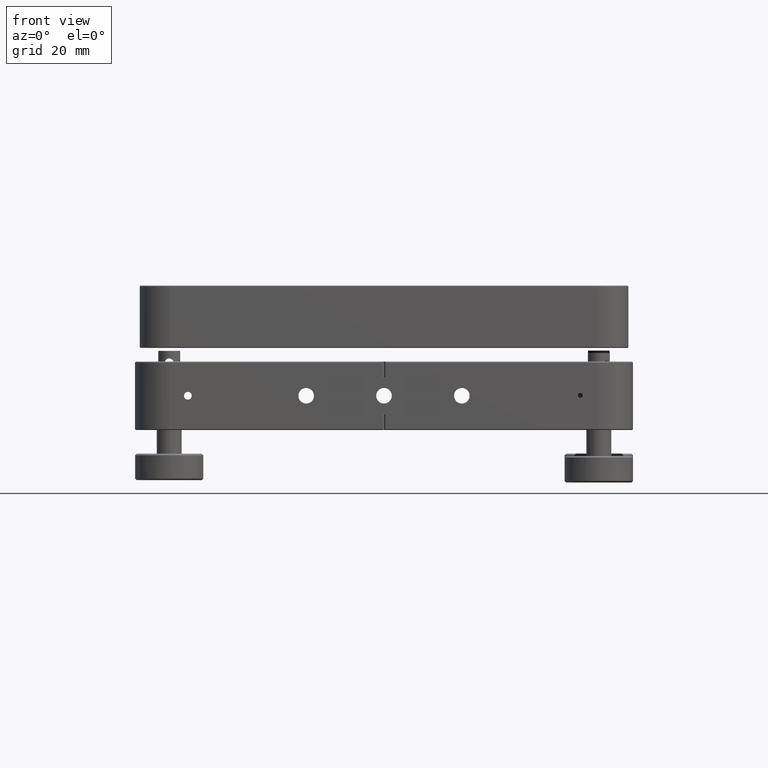
[diagram: clean part render]
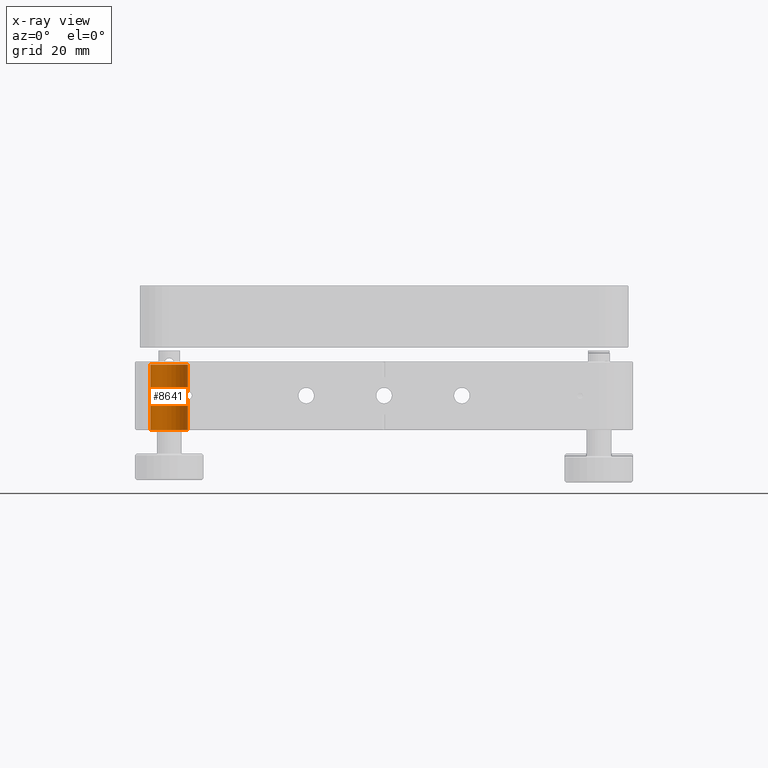
[diagram: x-ray — body ghosted, one internal face saturated and labeled with its STEP entity id]
A machine part, front view, then the same camera in x-ray: the body is ghosted and one INTERNAL B-rep face — a face not visible from any outside direction — is saturated and labeled: STEP entity #8641.
In plain terms, the highlighted cylindrical surface (edge-blend (fillet) strip) has radius 6 mm, axis along (0, 0, -1).
Its self-contained STEP definition (entity closure, byte-faithful):
#105 = CARTESIAN_POINT ( 'NONE',  ( -62.99999999999998579, -69.00000000000001421, 11.00000000000000000 ) ) ;
#166 = B_SPLINE_CURVE_WITH_KNOTS ( 'NONE', 3,
 ( #3575, #16191, #13374, #3296, #568, #8983, #7710, #17451, #1928, #4941, #3670, #8892, #6409, #12002, #9256, #5219, #13464, #16369, #1201, #5405, #10718, #6686, #16278, #12095, #13737, #9620, #2568, #16546, #6774, #7895, #3754, #7983, #15008, #13646, #9350, #1113 ),
 .UNSPECIFIED., .F., .F.,
 ( 4, 2, 2, 2, 2, 2, 2, 2, 2, 2, 2, 2, 2, 2, 2, 2, 2, 4 ),
 ( 1.388456241783856658E-17, 0.001113954897904537297, 0.001670932346856802801, 0.002227909795809068522, 0.002784887244761334243, 0.003341864693713599965, 0.003620353418189723067, 0.003898842142665847037, 0.004177330867141970140, 0.004455819591618093677, 0.004734308316094216346, 0.005012797040570339015, 0.005291285765046461684, 0.005569774489522584353, 0.006126751938474851375, 0.006683729387427116662, 0.007797684285331624686, 0.008911639183236133577 ),
 .UNSPECIFIED. ) ;
#172 = ORIENTED_EDGE ( 'NONE', *, *, #10265, .F. ) ;
#456 = LINE ( 'NONE', #8600, #1658 ) ;
#568 = CARTESIAN_POINT ( 'NONE',  ( -63.18133658306689426, -67.52419649807229973, 1.237886824584631507 ) ) ;
#902 = DIRECTION ( 'NONE',  ( 1.000000000000000000, 0.000000000000000000, 0.000000000000000000 ) ) ;
#949 = ORIENTED_EDGE ( 'NONE', *, *, #1410, .T. ) ;
#1113 = CARTESIAN_POINT ( 'NONE',  ( -62.99999999999998579, -69.00000000000001421, -1.249999999999990674 ) ) ;
#1201 = CARTESIAN_POINT ( 'NONE',  ( -64.25029838675781946, -65.33389377754276950, 0.08989913163700002929 ) ) ;
#1410 = EDGE_CURVE ( 'NONE', #5757, #3741, #12398, .T. ) ;
#1658 = VECTOR ( 'NONE', #11336, 1000.000000000000000 ) ;
#1752 = VECTOR ( 'NONE', #2894, 1000.000000000000000 ) ;
#1928 = CARTESIAN_POINT ( 'NONE',  ( -63.55702805116133902, -66.46877654660295320, 1.123044878255692547 ) ) ;
#2568 = CARTESIAN_POINT ( 'NONE',  ( -63.93484836030260965, -65.78268711934849478, -0.8321056435616421831 ) ) ;
#2769 = VERTEX_POINT ( 'NONE', #17930 ) ;
#2894 = DIRECTION ( 'NONE',  ( 0.000000000000000000, 0.000000000000000000, -1.000000000000000000 ) ) ;
#3296 = CARTESIAN_POINT ( 'NONE',  ( -63.13843892088684129, -67.70517300958670148, 1.242790363445695601 ) ) ;
#3575 = CARTESIAN_POINT ( 'NONE',  ( -62.99999999999998579, -69.00000000000000000, 1.249999999999990674 ) ) ;
#3599 = EDGE_CURVE ( 'NONE', #3741, #11416, #15776, .T. ) ;
#3670 = CARTESIAN_POINT ( 'NONE',  ( -63.80679783533964411, -65.99026219198769638, 0.9629844156710400949 ) ) ;
#3741 = VERTEX_POINT ( 'NONE', #16137 ) ;
#3754 = CARTESIAN_POINT ( 'NONE',  ( -63.47924734411233771, -66.64290152189138894, -1.156704827246176404 ) ) ;
#4120 = ORIENTED_EDGE ( 'NONE', *, *, #3599, .T. ) ;
#4494 = AXIS2_PLACEMENT_3D ( 'NONE', #6912, #17862, #13690 ) ;
#4578 = EDGE_LOOP ( 'NONE', ( #14142, #949, #4120, #172, #9072, #11273 ) ) ;
#4824 = DIRECTION ( 'NONE',  ( 0.000000000000000000, 0.000000000000000000, 1.000000000000000000 ) ) ;
#4941 = CARTESIAN_POINT ( 'NONE',  ( -63.72022422600573321, -66.14395315458315849, 1.026054147027005703 ) ) ;
#4995 = CARTESIAN_POINT ( 'NONE',  ( -68.99999999999998579, -69.00000000000001421, -11.00000000000000000 ) ) ;
#5219 = CARTESIAN_POINT ( 'NONE',  ( -64.17094071428412860, -65.43860718666965681, 0.4450038959629155078 ) ) ;
#5405 = CARTESIAN_POINT ( 'NONE',  ( -64.24968844366229348, -65.33468413818135900, -0.09801379278043578780 ) ) ;
#5757 = VERTEX_POINT ( 'NONE', #16382 ) ;
#5983 = DIRECTION ( 'NONE',  ( 0.000000000000000000, 0.000000000000000000, -1.000000000000000000 ) ) ;
#6409 = CARTESIAN_POINT ( 'NONE',  ( -63.98151232234705788, -65.71058962009550442, 0.7773441658092655748 ) ) ;
#6622 = AXIS2_PLACEMENT_3D ( 'NONE', #4995, #4824, #902 ) ;
#6686 = CARTESIAN_POINT ( 'NONE',  ( -64.19768547221781319, -65.40293084955000324, -0.3690722888009878577 ) ) ;
#6774 = CARTESIAN_POINT ( 'NONE',  ( -63.71673344335474098, -66.15049721898209611, -1.028403479199684556 ) ) ;
#6912 = CARTESIAN_POINT ( 'NONE',  ( -68.99999999999998579, -69.00000000000001421, 9.999999999999998224 ) ) ;
#7268 = DIRECTION ( 'NONE',  ( -1.000000000000000000, 0.000000000000000000, 0.000000000000000000 ) ) ;
#7353 = CARTESIAN_POINT ( 'NONE',  ( -68.99999999999998579, -69.00000000000001421, 11.00000000000000000 ) ) ;
#7710 = CARTESIAN_POINT ( 'NONE',  ( -63.34481341808489674, -66.98661762247020590, 1.203661452424293232 ) ) ;
#7895 = CARTESIAN_POINT ( 'NONE',  ( -63.55501766432809774, -66.47319589761771397, -1.123955487168854850 ) ) ;
#7957 = CARTESIAN_POINT ( 'NONE',  ( -62.99999999999998579, -69.00000000000001421, -1.249999999999990674 ) ) ;
#7983 = CARTESIAN_POINT ( 'NONE',  ( -63.27607548237948265, -67.16283353814863233, -1.227541699854895363 ) ) ;
#8600 = CARTESIAN_POINT ( 'NONE',  ( -62.99999999999998579, -69.00000000000001421, 11.00000000000000000 ) ) ;
#8641 = ADVANCED_FACE ( 'NONE', ( #12945 ), #16770, .F. ) ;
#8892 = CARTESIAN_POINT ( 'NONE',  ( -63.93834132448139940, -65.77717840215282763, 0.8282246022389790907 ) ) ;
#8983 = CARTESIAN_POINT ( 'NONE',  ( -63.28432107509467386, -67.16537350851700694, 1.218362948014910963 ) ) ;
#9072 = ORIENTED_EDGE ( 'NONE', *, *, #10177, .F. ) ;
#9256 = CARTESIAN_POINT ( 'NONE',  ( -64.10331199631922061, -65.53217951006563169, 0.5931553443816443005 ) ) ;
#9350 = CARTESIAN_POINT ( 'NONE',  ( -63.00000000000000000, -68.62844139303031454, -1.249999999999990674 ) ) ;
#9613 = DIRECTION ( 'NONE',  ( 0.000000000000000000, 0.000000000000000000, -1.000000000000000000 ) ) ;
#9620 = CARTESIAN_POINT ( 'NONE',  ( -63.97780713787683027, -65.71624140108581003, -0.7819749117090921686 ) ) ;
#9785 = CARTESIAN_POINT ( 'NONE',  ( -75.00000000000000000, -69.00000000000001421, -11.00000000000000000 ) ) ;
#10177 = EDGE_CURVE ( 'NONE', #17147, #2769, #456, .T. ) ;
#10265 = EDGE_CURVE ( 'NONE', #2769, #11416, #14496, .T. ) ;
#10718 = CARTESIAN_POINT ( 'NONE',  ( -64.23831486880138186, -65.34931704907300798, -0.1929796114304714871 ) ) ;
#11273 = ORIENTED_EDGE ( 'NONE', *, *, #12908, .F. ) ;
#11336 = DIRECTION ( 'NONE',  ( 0.000000000000000000, 0.000000000000000000, -1.000000000000000000 ) ) ;
#11416 = VERTEX_POINT ( 'NONE', #9785 ) ;
#12002 = CARTESIAN_POINT ( 'NONE',  ( -64.06388218675274970, -65.58822917652410922, 0.6601402000688433302 ) ) ;
#12095 = CARTESIAN_POINT ( 'NONE',  ( -64.09997800398978995, -65.53688204858657684, -0.5992766933433233412 ) ) ;
#12398 = CIRCLE ( 'NONE', #4494, 6.000000000000005329 ) ;
#12869 = CARTESIAN_POINT ( 'NONE',  ( -75.00000000000000000, -69.00000000000001421, 11.00000000000000000 ) ) ;
#12908 = EDGE_CURVE ( 'NONE', #17074, #17147, #166, .T. ) ;
#12945 = FACE_OUTER_BOUND ( 'NONE', #4578, .T. ) ;
#13374 = CARTESIAN_POINT ( 'NONE',  ( -63.03516917574224010, -68.25254156296686858, 1.251413607979763976 ) ) ;
#13464 = CARTESIAN_POINT ( 'NONE',  ( -64.19995544426924994, -65.39991059907222848, 0.3616466798125912985 ) ) ;
#13546 = AXIS2_PLACEMENT_3D ( 'NONE', #7353, #5983, #7268 ) ;
#13646 = CARTESIAN_POINT ( 'NONE',  ( -63.03506567787786707, -68.25264590235744322, -1.251436005054972878 ) ) ;
#13690 = DIRECTION ( 'NONE',  ( 1.000000000000000000, 0.000000000000000000, 0.000000000000000000 ) ) ;
#13737 = CARTESIAN_POINT ( 'NONE',  ( -64.06044203493335942, -65.59320402870226019, -0.6656232057040205596 ) ) ;
#14142 = ORIENTED_EDGE ( 'NONE', *, *, #14492, .F. ) ;
#14492 = EDGE_CURVE ( 'NONE', #5757, #17074, #16626, .T. ) ;
#14496 = CIRCLE ( 'NONE', #6622, 6.000000000000005329 ) ;
#14553 = CARTESIAN_POINT ( 'NONE',  ( -62.99999999999998579, -69.00000000000000000, 1.249999999999990674 ) ) ;
#15008 = CARTESIAN_POINT ( 'NONE',  ( -63.17345832695822594, -67.52000278824544921, -1.239852364324812495 ) ) ;
#15268 = VECTOR ( 'NONE', #9613, 1000.000000000000000 ) ;
#15776 = LINE ( 'NONE', #12869, #1752 ) ;
#16137 = CARTESIAN_POINT ( 'NONE',  ( -75.00000000000000000, -69.00000000000001421, 9.999999999999998224 ) ) ;
#16191 = CARTESIAN_POINT ( 'NONE',  ( -62.99999999999994316, -68.62331343843966636, 1.249999999999990674 ) ) ;
#16278 = CARTESIAN_POINT ( 'NONE',  ( -64.16822335308461334, -65.44228501125944319, -0.4520380091912009068 ) ) ;
#16369 = CARTESIAN_POINT ( 'NONE',  ( -64.23952023704343617, -65.34775358742685114, 0.1851242048214218894 ) ) ;
#16382 = CARTESIAN_POINT ( 'NONE',  ( -62.99999999999998579, -69.00000000000001421, 9.999999999999998224 ) ) ;
#16546 = CARTESIAN_POINT ( 'NONE',  ( -63.80450093346951235, -65.99429830651460804, -0.9646985452863622301 ) ) ;
#16626 = LINE ( 'NONE', #105, #15268 ) ;
#16770 = CYLINDRICAL_SURFACE ( 'NONE', #13546, 6.000000000000005329 ) ;
#17074 = VERTEX_POINT ( 'NONE', #14553 ) ;
#17147 = VERTEX_POINT ( 'NONE', #7957 ) ;
#17451 = CARTESIAN_POINT ( 'NONE',  ( -63.48090494314178045, -66.63897614840871597, 1.156039627783300494 ) ) ;
#17862 = DIRECTION ( 'NONE',  ( 0.000000000000000000, 0.000000000000000000, 1.000000000000000000 ) ) ;
#17930 = CARTESIAN_POINT ( 'NONE',  ( -62.99999999999998579, -69.00000000000001421, -11.00000000000000000 ) ) ;